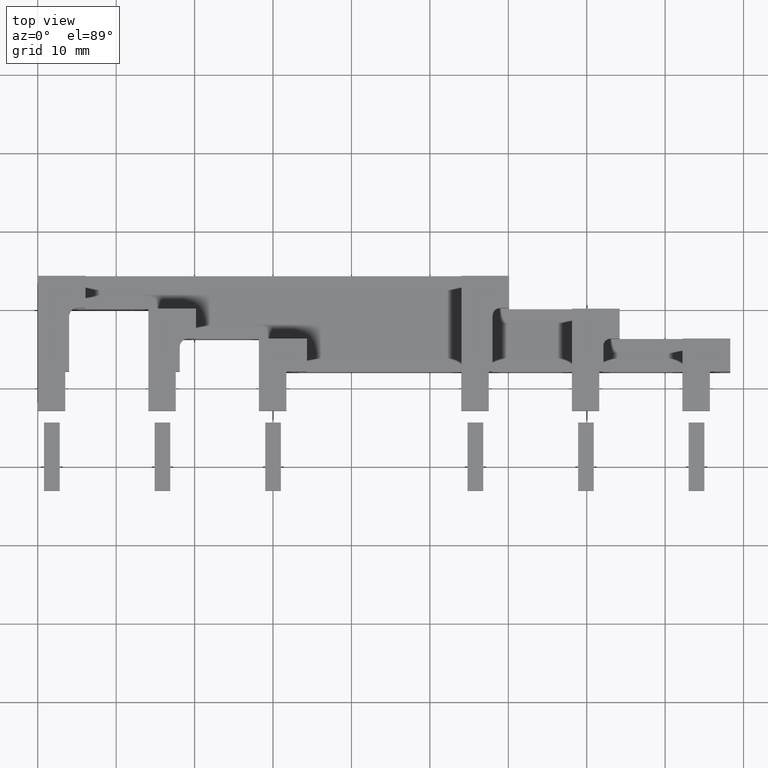
[diagram: clean part render]
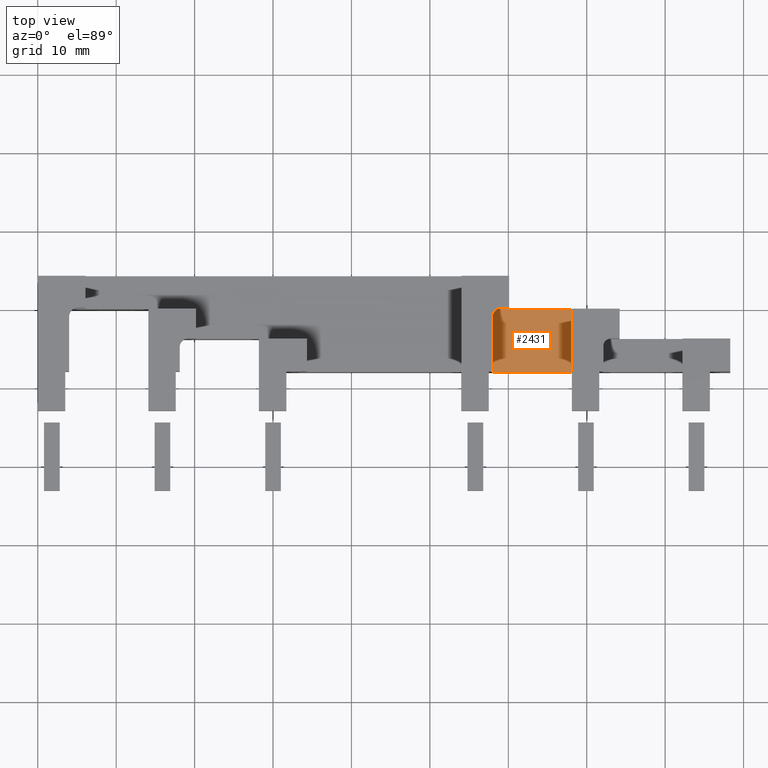
[diagram: same view with one face highlighted and labeled with its STEP entity id]
A machine part, top view. The second image highlights one B-rep face of the part: STEP entity #2431.
In plain terms, the highlighted planar face has unit normal (0, 0, 1).
Its self-contained STEP definition (entity closure, byte-faithful):
#2367=CARTESIAN_POINT('',(61.050000000000004,2.100000000005153,103.99999999999096));
#2368=DIRECTION('',(0.0,0.0,1.0));
#2369=DIRECTION('',(1.0,0.0,0.0));
#2370=AXIS2_PLACEMENT_3D('',#2367,#2368,#2369);
#2371=PLANE('',#2370);
#2372=CARTESIAN_POINT('',(68.099999999999895,1.406875E-012,103.99999999999076));
#2373=VERTEX_POINT('',#2372);
#2374=CARTESIAN_POINT('',(68.100000000000051,-7.999999999990878,103.99999999999079));
#2375=VERTEX_POINT('',#2374);
#2376=CARTESIAN_POINT('',(68.099999999999895,1.406875E-012,103.99999999999076));
#2377=DIRECTION('',(0.0,-1.0,0.0));
#2378=VECTOR('',#2377,7.999999999992271);
#2379=LINE('',#2376,#2378);
#2380=EDGE_CURVE('',#2373,#2375,#2379,.T.);
#2381=ORIENTED_EDGE('',*,*,#2380,.F.);
#2382=CARTESIAN_POINT('',(60.099999999999774,-1.421085E-014,103.99999999999096));
#2383=VERTEX_POINT('',#2382);
#2384=CARTESIAN_POINT('',(68.099999999999852,1.545469E-013,103.99999999999078));
#2385=DIRECTION('',(-1.0,0.0,0.0));
#2386=VECTOR('',#2385,8.000000000000114);
#2387=LINE('',#2384,#2386);
#2388=EDGE_CURVE('',#2373,#2383,#2387,.T.);
#2389=ORIENTED_EDGE('',*,*,#2388,.T.);
#2390=CARTESIAN_POINT('',(60.099999999999874,0.100000000000691,103.99999999999098));
#2391=VERTEX_POINT('',#2390);
#2392=CARTESIAN_POINT('',(60.099999999999767,0.0,103.99999999999098));
#2393=DIRECTION('',(0.0,1.0,0.0));
#2394=VECTOR('',#2393,0.100000000000705);
#2395=LINE('',#2392,#2394);
#2396=EDGE_CURVE('',#2383,#2391,#2395,.T.);
#2397=ORIENTED_EDGE('',*,*,#2396,.T.);
#2398=CARTESIAN_POINT('',(59.000000000000092,0.100000000000676,103.99999999999099));
#2399=VERTEX_POINT('',#2398);
#2400=CARTESIAN_POINT('',(59.000000000000092,0.100000000000676,103.99999999999099));
#2401=DIRECTION('',(1.0,0.0,0.0));
#2402=VECTOR('',#2401,1.099999999999795);
#2403=LINE('',#2400,#2402);
#2404=EDGE_CURVE('',#2399,#2391,#2403,.T.);
#2405=ORIENTED_EDGE('',*,*,#2404,.F.);
#2406=CARTESIAN_POINT('',(58.000000000000121,-0.899999999999324,103.99999999999103));
#2407=VERTEX_POINT('',#2406);
#2408=CARTESIAN_POINT('',(59.000000000000114,-0.899999999999338,103.99999999999099));
#2409=DIRECTION('',(-1.068686E-014,1.068686E-014,-1.0));
#2410=DIRECTION('',(-0.707106781186552,0.707106781186543,1.511351E-014));
#2411=AXIS2_PLACEMENT_3D('',#2408,#2409,#2410);
#2412=CIRCLE('',#2411,1.000000000000001);
#2413=EDGE_CURVE('',#2407,#2399,#2412,.T.);
#2414=ORIENTED_EDGE('',*,*,#2413,.F.);
#2415=CARTESIAN_POINT('',(58.000000000000256,-7.999999999990907,103.99999999999099));
#2416=VERTEX_POINT('',#2415);
#2417=CARTESIAN_POINT('',(58.000000000000256,-7.999999999990907,103.99999999999099));
#2418=DIRECTION('',(0.0,1.0,0.0));
#2419=VECTOR('',#2418,7.099999999991583);
#2420=LINE('',#2417,#2419);
#2421=EDGE_CURVE('',#2416,#2407,#2420,.T.);
#2422=ORIENTED_EDGE('',*,*,#2421,.F.);
#2423=CARTESIAN_POINT('',(58.000000000000199,-7.999999999991076,103.99999999999102));
#2424=DIRECTION('',(1.0,0.0,0.0));
#2425=VECTOR('',#2424,10.099999999999795);
#2426=LINE('',#2423,#2425);
#2427=EDGE_CURVE('',#2416,#2375,#2426,.T.);
#2428=ORIENTED_EDGE('',*,*,#2427,.T.);
#2429=EDGE_LOOP('',(#2381,#2389,#2397,#2405,#2414,#2422,#2428));
#2430=FACE_OUTER_BOUND('',#2429,.T.);
#2431=ADVANCED_FACE('',(#2430),#2371,.T.);